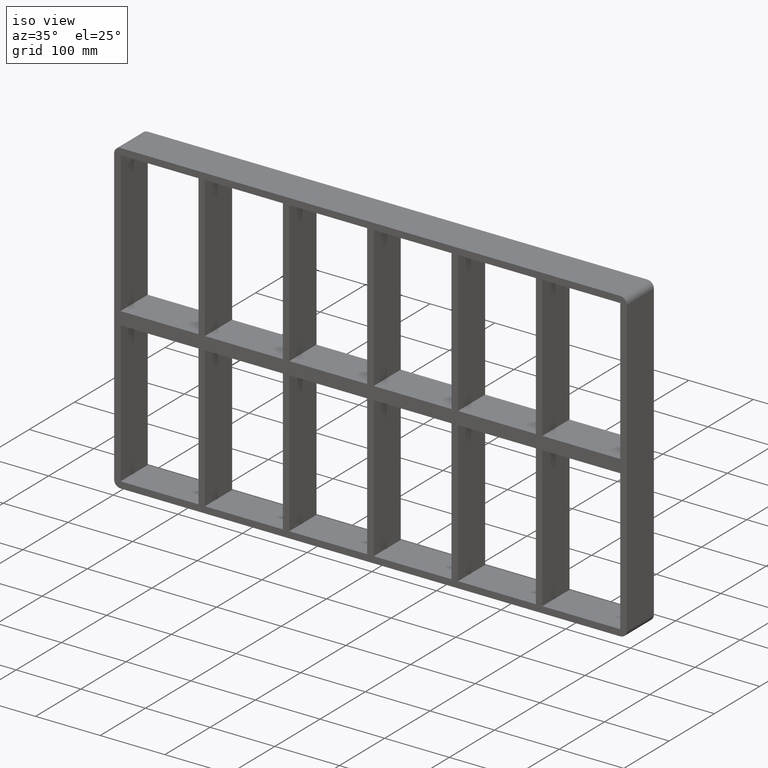
[diagram: clean part render]
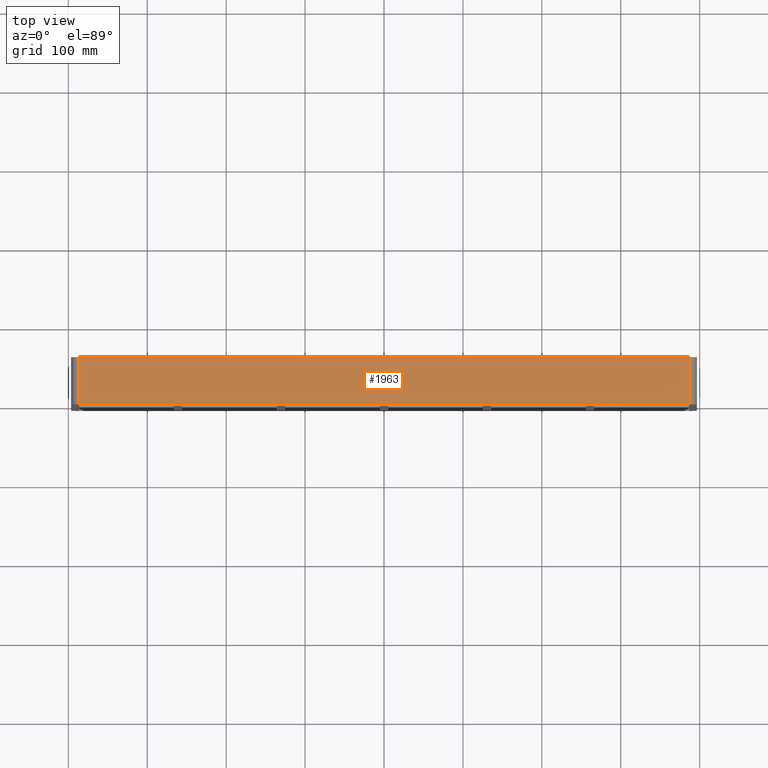
[diagram: tour spotlight — one face highlighted and labeled with its STEP entity id]
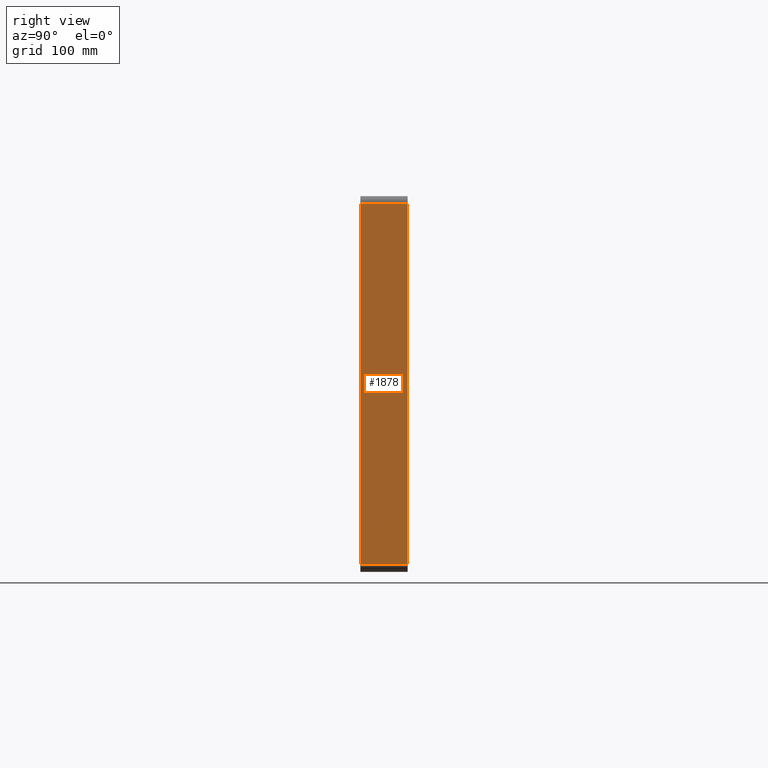
[diagram: tour spotlight — one face highlighted and labeled with its STEP entity id]
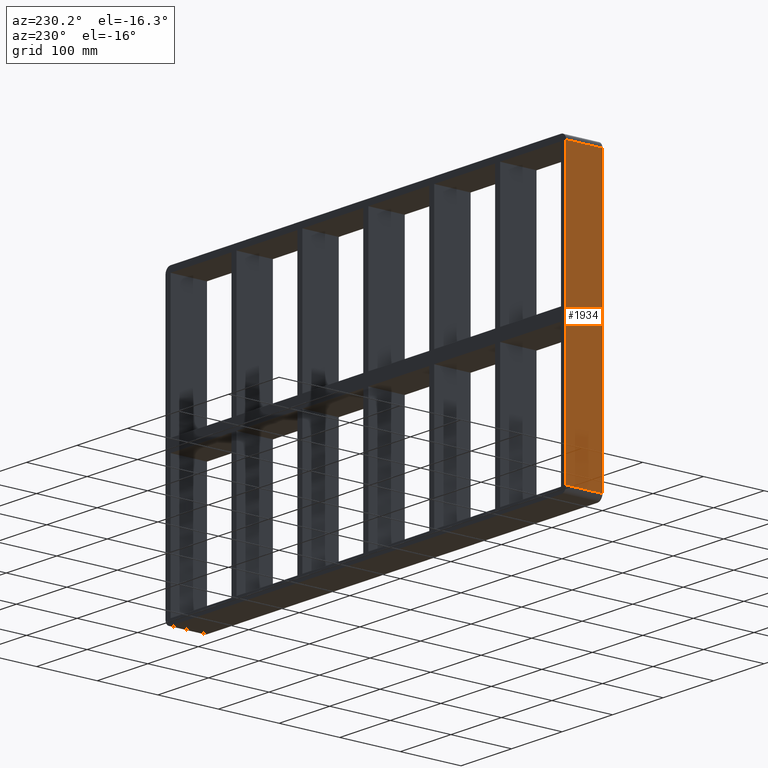
[diagram: tour spotlight — one face highlighted and labeled with its STEP entity id]
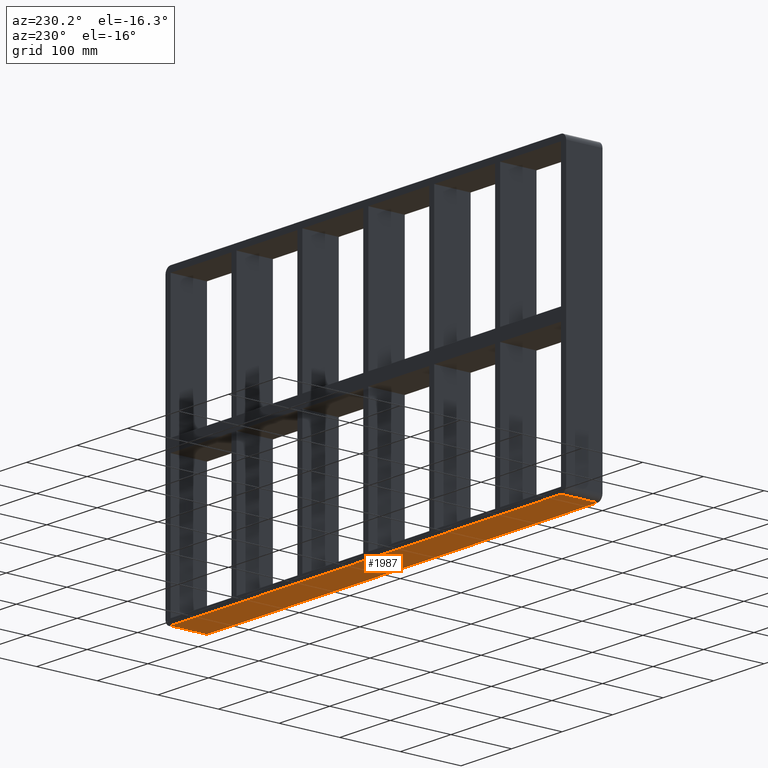
[diagram: tour spotlight — one face highlighted and labeled with its STEP entity id]
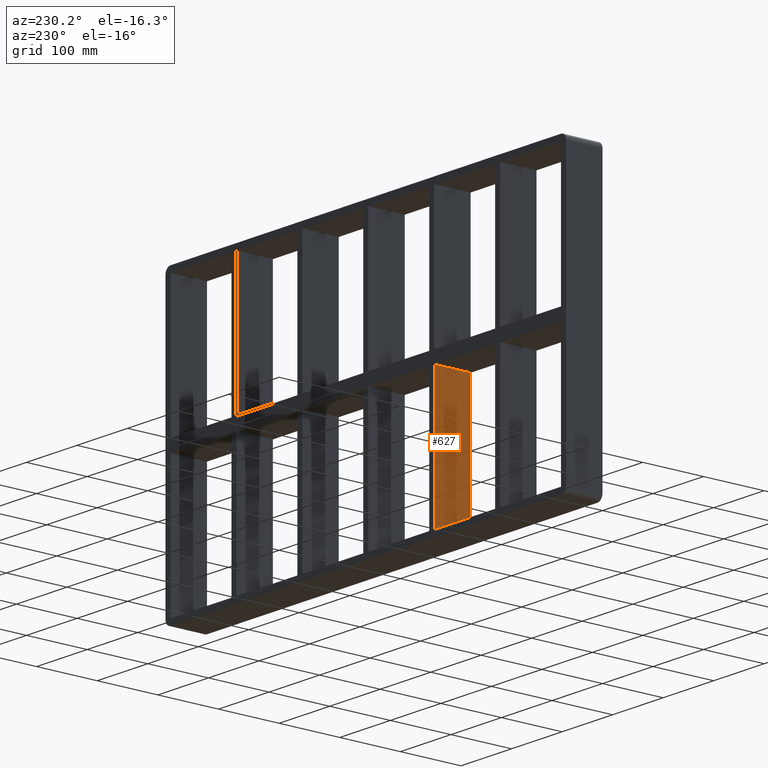
[diagram: tour spotlight — one face highlighted and labeled with its STEP entity id]
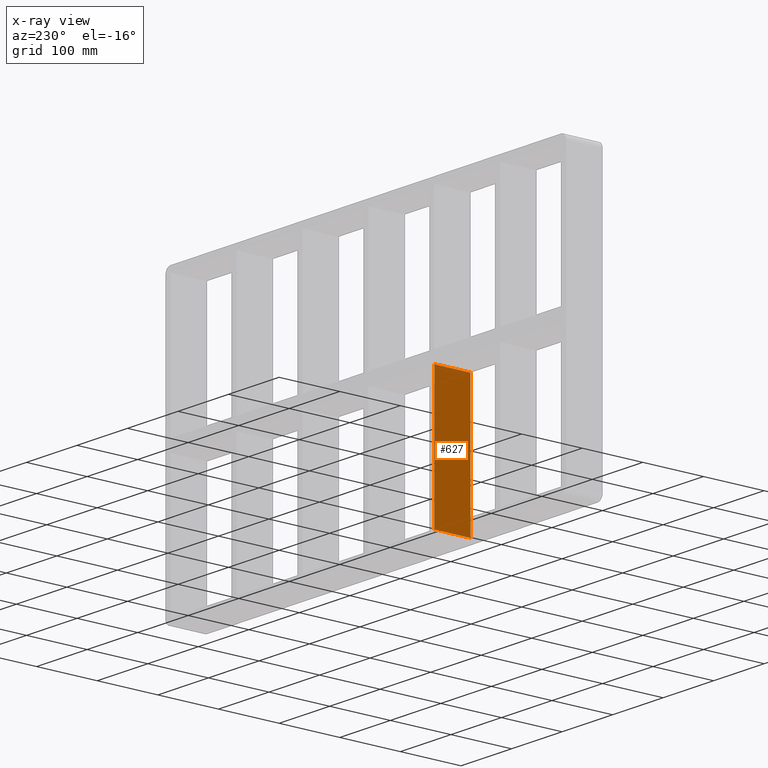
[diagram: x-ray of the same camera — body ghosted, this tour face saturated]
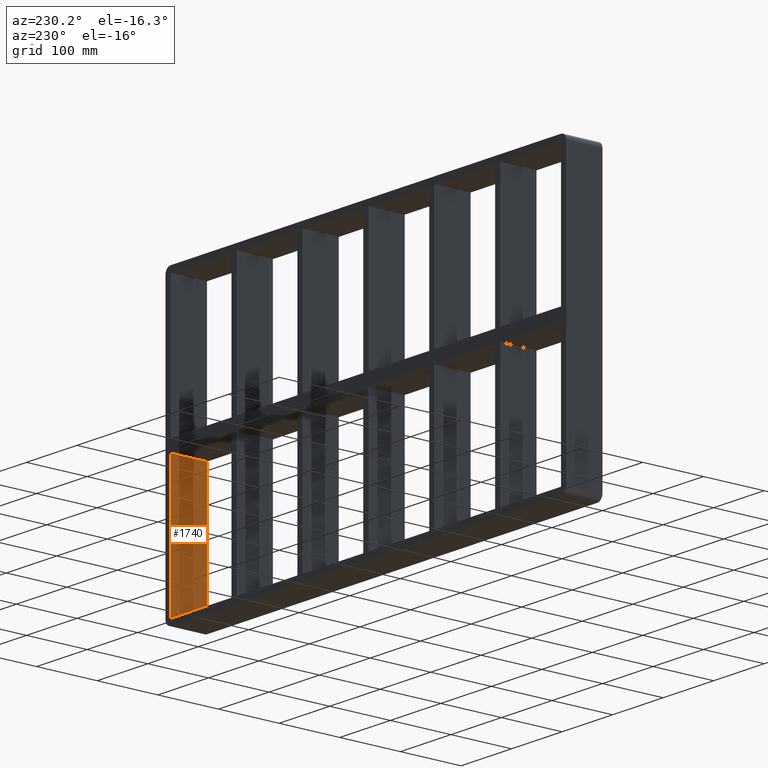
[diagram: tour spotlight — one face highlighted and labeled with its STEP entity id]
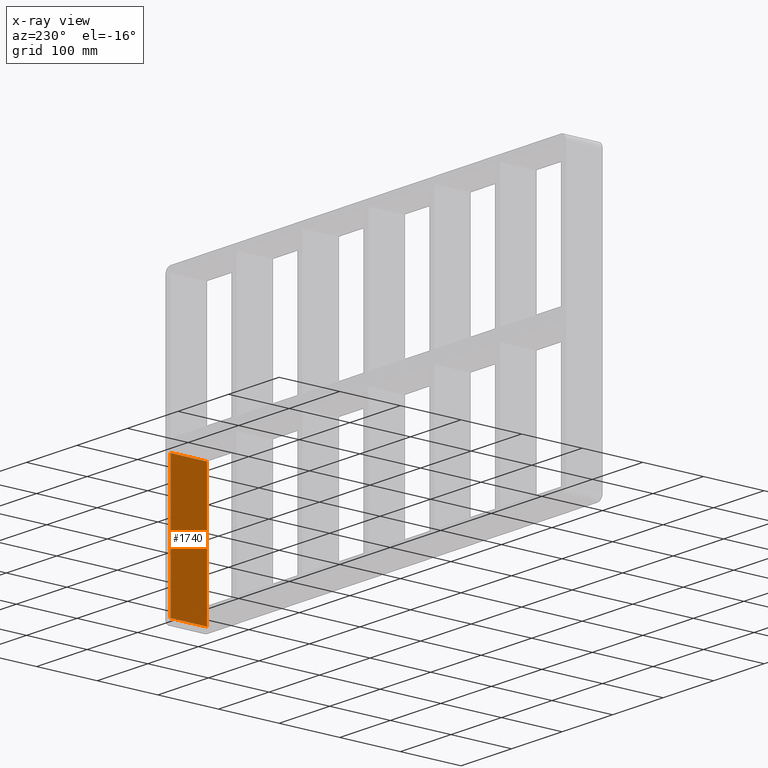
[diagram: x-ray of the same camera — body ghosted, this tour face saturated]
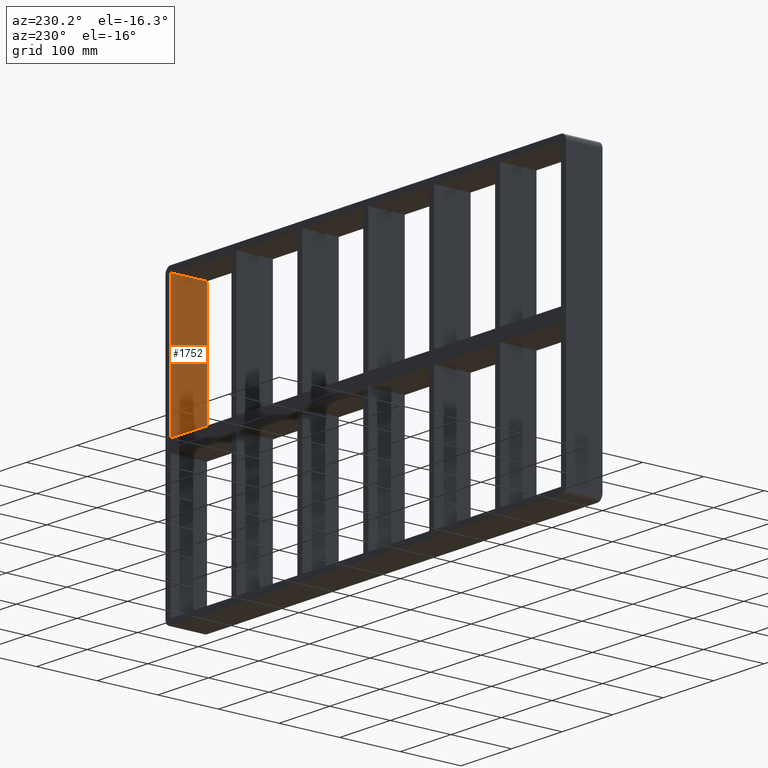
[diagram: tour spotlight — one face highlighted and labeled with its STEP entity id]
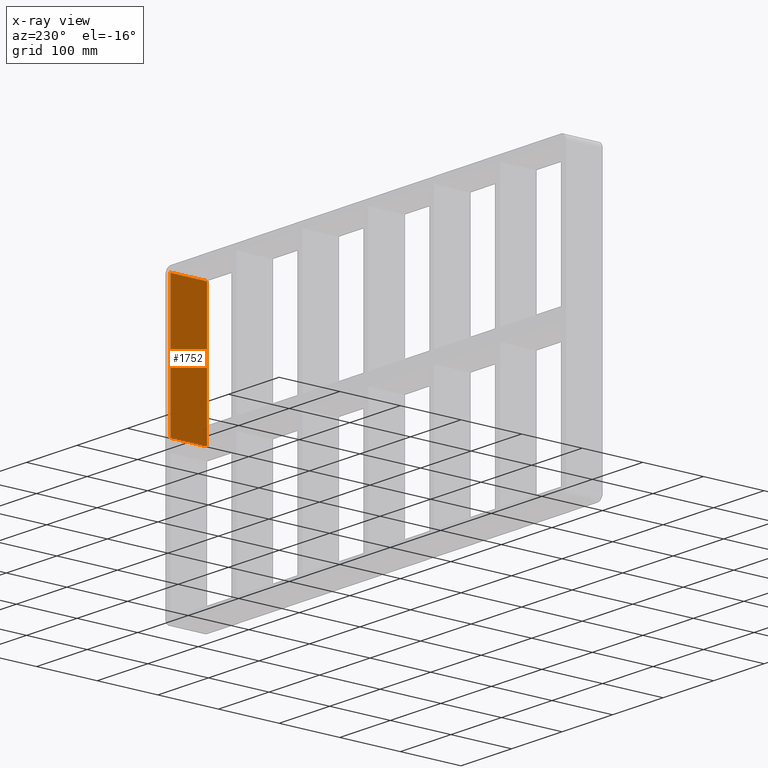
[diagram: x-ray of the same camera — body ghosted, this tour face saturated]
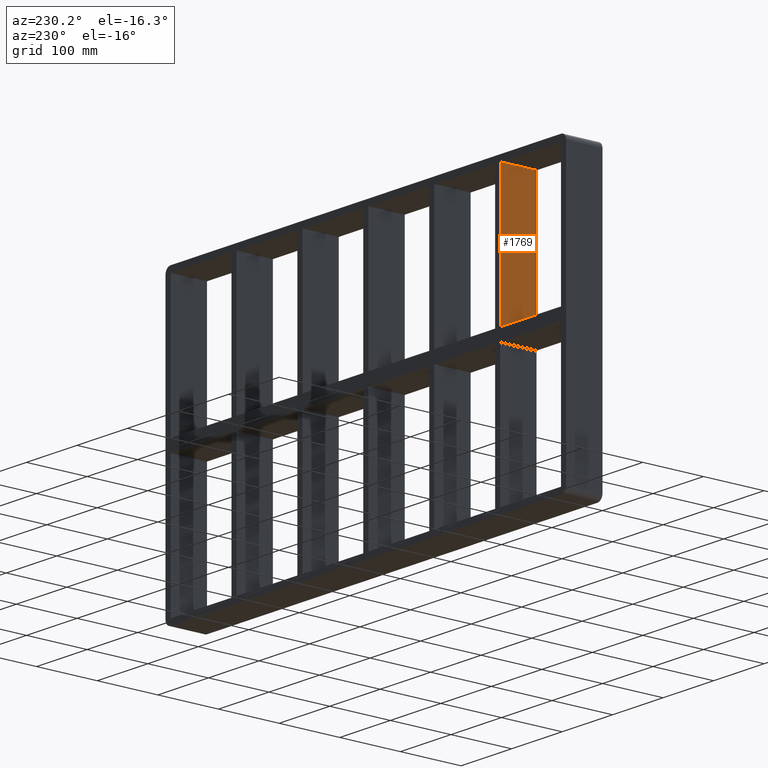
[diagram: tour spotlight — one face highlighted and labeled with its STEP entity id]
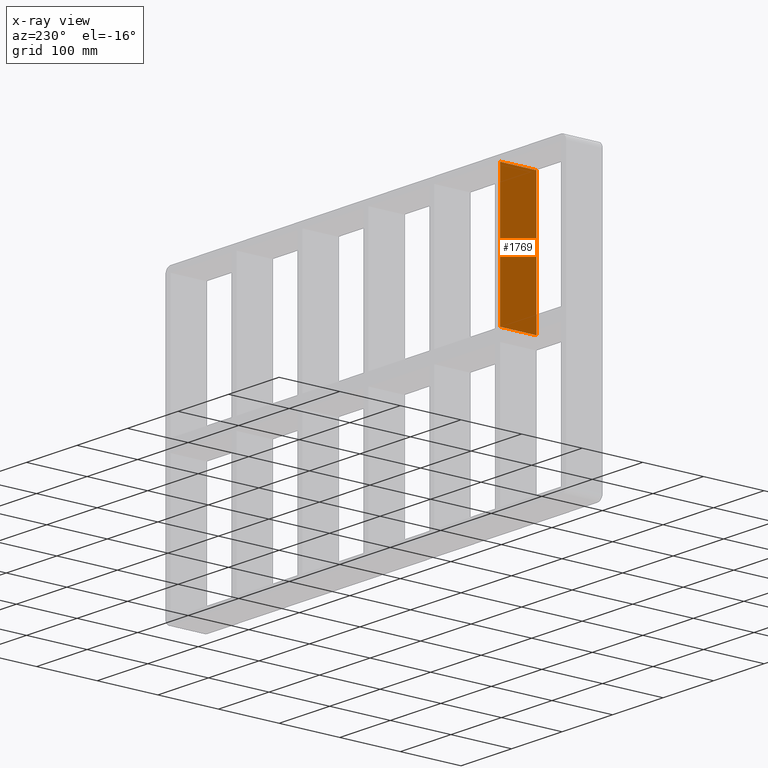
[diagram: x-ray of the same camera — body ghosted, this tour face saturated]
A machine part: a face-by-face anatomy tour. The part has 58 B-rep faces; the first image is the clean iso view, then the 8 largest visible faces are spotlighted one at a time (largest first), each with its STEP entity span.

Face 1 — top view, entity #1963. In plain terms, the highlighted planar face has unit normal (0, 0, 1).
Definition (entity closure, byte-faithful):
#860=CARTESIAN_POINT('',(386.50000000000006,-3.0,238.0));
#861=VERTEX_POINT('',#860);
#869=CARTESIAN_POINT('',(-386.50000000000006,-3.0,238.0));
#870=VERTEX_POINT('',#869);
#871=CARTESIAN_POINT('',(386.50000000000006,-3.0,238.0));
#872=DIRECTION('',(-1.0,0.0,0.0));
#873=VECTOR('',#872,773.00000000000011);
#874=LINE('',#871,#873);
#875=EDGE_CURVE('',#861,#870,#874,.T.);
#1270=CARTESIAN_POINT('',(-386.50000000000006,57.0,238.0));
#1271=VERTEX_POINT('',#1270);
#1279=CARTESIAN_POINT('',(386.50000000000006,57.0,238.0));
#1280=VERTEX_POINT('',#1279);
#1281=CARTESIAN_POINT('',(-386.50000000000006,57.0,238.0));
#1282=DIRECTION('',(1.0,0.0,0.0));
#1283=VECTOR('',#1282,773.00000000000011);
#1284=LINE('',#1281,#1283);
#1285=EDGE_CURVE('',#1271,#1280,#1284,.T.);
#1887=CARTESIAN_POINT('',(386.50000000000006,57.0,238.0));
#1888=DIRECTION('',(0.0,-1.0,0.0));
#1889=VECTOR('',#1888,60.0);
#1890=LINE('',#1887,#1889);
#1891=EDGE_CURVE('',#1280,#861,#1890,.T.);
#1943=CARTESIAN_POINT('',(-386.50000000000006,-3.0,238.0));
#1944=DIRECTION('',(0.0,1.0,0.0));
#1945=VECTOR('',#1944,60.0);
#1946=LINE('',#1943,#1945);
#1947=EDGE_CURVE('',#870,#1271,#1946,.T.);
#1952=CARTESIAN_POINT('',(-396.50000000000006,0.0,238.0));
#1953=DIRECTION('',(0.0,0.0,1.0));
#1954=DIRECTION('',(1.0,0.0,0.0));
#1955=AXIS2_PLACEMENT_3D('',#1952,#1953,#1954);
#1956=PLANE('',#1955);
#1957=ORIENTED_EDGE('',*,*,#1891,.F.);
#1958=ORIENTED_EDGE('',*,*,#1285,.F.);
#1959=ORIENTED_EDGE('',*,*,#1947,.F.);
#1960=ORIENTED_EDGE('',*,*,#875,.F.);
#1961=EDGE_LOOP('',(#1957,#1958,#1959,#1960));
#1962=FACE_OUTER_BOUND('',#1961,.T.);
#1963=ADVANCED_FACE('',(#1962),#1956,.T.);

Face 2 — right view, entity #1878. In plain terms, the highlighted planar face has unit normal (1, 0, 0).
Definition (entity closure, byte-faithful):
#841=CARTESIAN_POINT('',(396.50000000000006,-3.0,-228.0));
#842=VERTEX_POINT('',#841);
#852=CARTESIAN_POINT('',(396.50000000000006,-3.0,228.0));
#853=VERTEX_POINT('',#852);
#854=CARTESIAN_POINT('',(396.50000000000006,-3.0,-228.0));
#855=DIRECTION('',(0.0,0.0,1.0));
#856=VECTOR('',#855,456.0);
#857=LINE('',#854,#856);
#858=EDGE_CURVE('',#842,#853,#857,.T.);
#1236=CARTESIAN_POINT('',(396.50000000000006,57.0,-228.0));
#1237=VERTEX_POINT('',#1236);
#1287=CARTESIAN_POINT('',(396.50000000000006,57.0,228.0));
#1288=VERTEX_POINT('',#1287);
#1296=CARTESIAN_POINT('',(396.50000000000006,57.0,228.0));
#1297=DIRECTION('',(0.0,0.0,-1.0));
#1298=VECTOR('',#1297,456.0);
#1299=LINE('',#1296,#1298);
#1300=EDGE_CURVE('',#1288,#1237,#1299,.T.);
#1846=CARTESIAN_POINT('',(396.50000000000006,57.0,-228.0));
#1847=DIRECTION('',(0.0,-1.0,0.0));
#1848=VECTOR('',#1847,60.0);
#1849=LINE('',#1846,#1848);
#1850=EDGE_CURVE('',#1237,#842,#1849,.T.);
#1862=CARTESIAN_POINT('',(396.50000000000006,0.0,238.0));
#1863=DIRECTION('',(1.0,0.0,0.0));
#1864=DIRECTION('',(0.0,0.0,-1.0));
#1865=AXIS2_PLACEMENT_3D('',#1862,#1863,#1864);
#1866=PLANE('',#1865);
#1867=ORIENTED_EDGE('',*,*,#1850,.F.);
#1868=ORIENTED_EDGE('',*,*,#1300,.F.);
#1869=CARTESIAN_POINT('',(396.50000000000006,-3.0,228.0));
#1870=DIRECTION('',(0.0,1.0,0.0));
#1871=VECTOR('',#1870,60.0);
#1872=LINE('',#1869,#1871);
#1873=EDGE_CURVE('',#853,#1288,#1872,.T.);
#1874=ORIENTED_EDGE('',*,*,#1873,.F.);
#1875=ORIENTED_EDGE('',*,*,#858,.F.);
#1876=EDGE_LOOP('',(#1867,#1868,#1874,#1875));
#1877=FACE_OUTER_BOUND('',#1876,.T.);
#1878=ADVANCED_FACE('',(#1877),#1866,.T.);

Face 3 — auxiliary view, entity #1934. In plain terms, the highlighted planar face has unit normal (-1, 0, 0).
Definition (entity closure, byte-faithful):
#877=CARTESIAN_POINT('',(-396.50000000000006,-3.0,228.0));
#878=VERTEX_POINT('',#877);
#886=CARTESIAN_POINT('',(-396.50000000000006,-3.0,-228.0));
#887=VERTEX_POINT('',#886);
#888=CARTESIAN_POINT('',(-396.50000000000006,-3.0,228.0));
#889=DIRECTION('',(0.0,0.0,-1.0));
#890=VECTOR('',#889,456.0);
#891=LINE('',#888,#890);
#892=EDGE_CURVE('',#878,#887,#891,.T.);
#1253=CARTESIAN_POINT('',(-396.50000000000006,57.0,-228.0));
#1254=VERTEX_POINT('',#1253);
#1262=CARTESIAN_POINT('',(-396.50000000000006,57.0,228.0));
#1263=VERTEX_POINT('',#1262);
#1264=CARTESIAN_POINT('',(-396.50000000000006,57.0,-228.0));
#1265=DIRECTION('',(0.0,0.0,1.0));
#1266=VECTOR('',#1265,456.0);
#1267=LINE('',#1264,#1266);
#1268=EDGE_CURVE('',#1254,#1263,#1267,.T.);
#1909=CARTESIAN_POINT('',(-396.50000000000006,-3.0,-228.0));
#1910=DIRECTION('',(0.0,1.0,0.0));
#1911=VECTOR('',#1910,60.0);
#1912=LINE('',#1909,#1911);
#1913=EDGE_CURVE('',#887,#1254,#1912,.T.);
#1918=CARTESIAN_POINT('',(-396.50000000000006,0.0,-238.0));
#1919=DIRECTION('',(-1.0,0.0,0.0));
#1920=DIRECTION('',(0.0,0.0,1.0));
#1921=AXIS2_PLACEMENT_3D('',#1918,#1919,#1920);
#1922=PLANE('',#1921);
#1923=ORIENTED_EDGE('',*,*,#1913,.F.);
#1924=ORIENTED_EDGE('',*,*,#892,.F.);
#1925=CARTESIAN_POINT('',(-396.50000000000006,57.0,228.0));
#1926=DIRECTION('',(0.0,-1.0,0.0));
#1927=VECTOR('',#1926,60.0);
#1928=LINE('',#1925,#1927);
#1929=EDGE_CURVE('',#1263,#878,#1928,.T.);
#1930=ORIENTED_EDGE('',*,*,#1929,.F.);
#1931=ORIENTED_EDGE('',*,*,#1268,.F.);
#1932=EDGE_LOOP('',(#1923,#1924,#1930,#1931));
#1933=FACE_OUTER_BOUND('',#1932,.T.);
#1934=ADVANCED_FACE('',(#1933),#1922,.T.);

Face 4 — auxiliary view, entity #1987. In plain terms, the highlighted planar face has unit normal (0, 0, -1).
Definition (entity closure, byte-faithful):
#843=CARTESIAN_POINT('',(386.50000000000006,-3.0,-238.0));
#844=VERTEX_POINT('',#843);
#894=CARTESIAN_POINT('',(-386.50000000000006,-3.0,-238.0));
#895=VERTEX_POINT('',#894);
#903=CARTESIAN_POINT('',(-386.50000000000006,-3.0,-238.0));
#904=DIRECTION('',(1.0,0.0,0.0));
#905=VECTOR('',#904,773.00000000000011);
#906=LINE('',#903,#905);
#907=EDGE_CURVE('',#895,#844,#906,.T.);
#1234=CARTESIAN_POINT('',(386.50000000000006,57.0,-238.0));
#1235=VERTEX_POINT('',#1234);
#1245=CARTESIAN_POINT('',(-386.50000000000006,57.0,-238.0));
#1246=VERTEX_POINT('',#1245);
#1247=CARTESIAN_POINT('',(386.50000000000006,57.0,-238.0));
#1248=DIRECTION('',(-1.0,0.0,0.0));
#1249=VECTOR('',#1248,773.00000000000011);
#1250=LINE('',#1247,#1249);
#1251=EDGE_CURVE('',#1235,#1246,#1250,.T.);
#1853=CARTESIAN_POINT('',(386.50000000000006,-3.0,-238.0));
#1854=DIRECTION('',(0.0,1.0,0.0));
#1855=VECTOR('',#1854,60.0);
#1856=LINE('',#1853,#1855);
#1857=EDGE_CURVE('',#844,#1235,#1856,.T.);
#1902=CARTESIAN_POINT('',(-386.50000000000006,57.0,-238.0));
#1903=DIRECTION('',(0.0,-1.0,0.0));
#1904=VECTOR('',#1903,60.0);
#1905=LINE('',#1902,#1904);
#1906=EDGE_CURVE('',#1246,#895,#1905,.T.);
#1976=CARTESIAN_POINT('',(396.50000000000006,0.0,-238.0));
#1977=DIRECTION('',(0.0,0.0,-1.0));
#1978=DIRECTION('',(-1.0,0.0,0.0));
#1979=AXIS2_PLACEMENT_3D('',#1976,#1977,#1978);
#1980=PLANE('',#1979);
#1981=ORIENTED_EDGE('',*,*,#1857,.F.);
#1982=ORIENTED_EDGE('',*,*,#907,.F.);
#1983=ORIENTED_EDGE('',*,*,#1906,.F.);
#1984=ORIENTED_EDGE('',*,*,#1251,.F.);
#1985=EDGE_LOOP('',(#1981,#1982,#1983,#1984));
#1986=FACE_OUTER_BOUND('',#1985,.T.);
#1987=ADVANCED_FACE('',(#1986),#1980,.T.);

Face 5 — auxiliary view, entity #627. An x-ray twin of the same camera follows (body ghosted, this face saturated) — the face is partly hidden behind the body. In plain terms, the highlighted planar face has unit normal (-1, 0, 0).
Definition (entity closure, byte-faithful):
#588=CARTESIAN_POINT('',(-135.50000000000128,-3.0,-227.99999999999997));
#589=DIRECTION('',(-1.0,0.0,0.0));
#590=DIRECTION('',(0.0,0.0,1.0));
#591=AXIS2_PLACEMENT_3D('',#588,#589,#590);
#592=PLANE('',#591);
#593=CARTESIAN_POINT('',(-135.50000000000131,57.0,-10.000000000009379));
#594=VERTEX_POINT('',#593);
#595=CARTESIAN_POINT('',(-135.50000000000131,-3.0,-10.000000000009379));
#596=VERTEX_POINT('',#595);
#597=CARTESIAN_POINT('',(-135.50000000000128,57.0,-10.000000000009361));
#598=DIRECTION('',(0.0,-1.0,0.0));
#599=VECTOR('',#598,60.0);
#600=LINE('',#597,#599);
#601=EDGE_CURVE('',#594,#596,#600,.T.);
#602=ORIENTED_EDGE('',*,*,#601,.F.);
#603=CARTESIAN_POINT('',(-135.50000000000128,57.0,-227.99999999999997));
#604=VERTEX_POINT('',#603);
#605=CARTESIAN_POINT('',(-135.50000000000128,57.0,-227.99999999999997));
#606=DIRECTION('',(0.0,0.0,1.0));
#607=VECTOR('',#606,217.99999999999059);
#608=LINE('',#605,#607);
#609=EDGE_CURVE('',#604,#594,#608,.T.);
#610=ORIENTED_EDGE('',*,*,#609,.F.);
#611=CARTESIAN_POINT('',(-135.50000000000128,-3.0,-227.99999999999997));
#612=VERTEX_POINT('',#611);
#613=CARTESIAN_POINT('',(-135.50000000000131,-3.0,-227.99999999999997));
#614=DIRECTION('',(0.0,1.0,0.0));
#615=VECTOR('',#614,60.000000000000007);
#616=LINE('',#613,#615);
#617=EDGE_CURVE('',#612,#604,#616,.T.);
#618=ORIENTED_EDGE('',*,*,#617,.F.);
#619=CARTESIAN_POINT('',(-135.50000000000128,-3.0,-227.99999999999997));
#620=DIRECTION('',(0.0,0.0,1.0));
#621=VECTOR('',#620,217.99999999999059);
#622=LINE('',#619,#621);
#623=EDGE_CURVE('',#612,#596,#622,.T.);
#624=ORIENTED_EDGE('',*,*,#623,.T.);
#625=EDGE_LOOP('',(#602,#610,#618,#624));
#626=FACE_OUTER_BOUND('',#625,.T.);
#627=ADVANCED_FACE('',(#626),#592,.T.);

Face 6 — auxiliary view, entity #1740. An x-ray twin of the same camera follows (body ghosted, this face saturated) — the face is partly hidden behind the body. In plain terms, the highlighted planar face has unit normal (1, 0, 0).
Definition (entity closure, byte-faithful):
#811=CARTESIAN_POINT('',(386.50000000000011,-3.0,-227.99999999999997));
#812=VERTEX_POINT('',#811);
#819=CARTESIAN_POINT('',(386.50000000000011,57.0,-227.99999999999997));
#820=VERTEX_POINT('',#819);
#821=CARTESIAN_POINT('',(386.50000000000011,57.0,-227.99999999999997));
#822=DIRECTION('',(0.0,-1.0,0.0));
#823=VECTOR('',#822,60.0);
#824=LINE('',#821,#823);
#825=EDGE_CURVE('',#820,#812,#824,.T.);
#1061=CARTESIAN_POINT('',(386.49999999999636,-3.0,-10.000000000009344));
#1062=VERTEX_POINT('',#1061);
#1069=CARTESIAN_POINT('',(386.50000000000011,-3.0,-10.000000000009351));
#1070=DIRECTION('',(0.0,0.0,-1.0));
#1071=VECTOR('',#1070,217.99999999999059);
#1072=LINE('',#1069,#1071);
#1073=EDGE_CURVE('',#1062,#812,#1072,.T.);
#1153=CARTESIAN_POINT('',(386.49999999999631,57.0,-10.000000000009344));
#1154=VERTEX_POINT('',#1153);
#1161=CARTESIAN_POINT('',(386.50000000000011,-3.0,-10.000000000009344));
#1162=DIRECTION('',(0.0,1.0,0.0));
#1163=VECTOR('',#1162,60.000000000000007);
#1164=LINE('',#1161,#1163);
#1165=EDGE_CURVE('',#1062,#1154,#1164,.T.);
#1305=CARTESIAN_POINT('',(386.50000000000011,57.0,-227.99999999999994));
#1306=DIRECTION('',(0.0,0.0,1.0));
#1307=VECTOR('',#1306,217.99999999999059);
#1308=LINE('',#1305,#1307);
#1309=EDGE_CURVE('',#820,#1154,#1308,.T.);
#1729=CARTESIAN_POINT('',(386.50000000000011,0.0,228.0));
#1730=DIRECTION('',(1.0,0.0,0.0));
#1731=DIRECTION('',(0.0,0.0,-1.0));
#1732=AXIS2_PLACEMENT_3D('',#1729,#1730,#1731);
#1733=PLANE('',#1732);
#1734=ORIENTED_EDGE('',*,*,#1165,.T.);
#1735=ORIENTED_EDGE('',*,*,#1309,.F.);
#1736=ORIENTED_EDGE('',*,*,#825,.T.);
#1737=ORIENTED_EDGE('',*,*,#1073,.F.);
#1738=EDGE_LOOP('',(#1734,#1735,#1736,#1737));
#1739=FACE_OUTER_BOUND('',#1738,.T.);
#1740=ADVANCED_FACE('',(#1739),#1733,.F.);

Face 7 — auxiliary view, entity #1752. An x-ray twin of the same camera follows (body ghosted, this face saturated) — the face is partly hidden behind the body. In plain terms, the highlighted planar face has unit normal (1, 0, 0).
Definition (entity closure, byte-faithful):
#1036=CARTESIAN_POINT('',(386.50000000000011,-3.0,227.99999999999997));
#1037=VERTEX_POINT('',#1036);
#1044=CARTESIAN_POINT('',(386.50000000000006,-3.0,10.0));
#1045=VERTEX_POINT('',#1044);
#1046=CARTESIAN_POINT('',(386.50000000000011,-3.0,227.99999999999997));
#1047=DIRECTION('',(0.0,0.0,-1.0));
#1048=VECTOR('',#1047,217.99999999999997);
#1049=LINE('',#1046,#1048);
#1050=EDGE_CURVE('',#1037,#1045,#1049,.T.);
#1315=CARTESIAN_POINT('',(386.5,57.0,10.0));
#1316=VERTEX_POINT('',#1315);
#1323=CARTESIAN_POINT('',(386.50000000000011,57.0,227.99999999999997));
#1324=VERTEX_POINT('',#1323);
#1325=CARTESIAN_POINT('',(386.50000000000011,57.0,10.0));
#1326=DIRECTION('',(0.0,0.0,1.0));
#1327=VECTOR('',#1326,217.99999999999997);
#1328=LINE('',#1325,#1327);
#1329=EDGE_CURVE('',#1316,#1324,#1328,.T.);
#1564=CARTESIAN_POINT('',(386.50000000000011,57.000000000000007,10.0));
#1565=DIRECTION('',(0.0,-1.0,0.0));
#1566=VECTOR('',#1565,60.000000000000007);
#1567=LINE('',#1564,#1566);
#1568=EDGE_CURVE('',#1316,#1045,#1567,.T.);
#1622=CARTESIAN_POINT('',(386.50000000000011,-3.0,228.0));
#1623=DIRECTION('',(0.0,1.0,0.0));
#1624=VECTOR('',#1623,60.0);
#1625=LINE('',#1622,#1624);
#1626=EDGE_CURVE('',#1037,#1324,#1625,.T.);
#1741=CARTESIAN_POINT('',(386.50000000000011,0.0,228.0));
#1742=DIRECTION('',(1.0,0.0,0.0));
#1743=DIRECTION('',(0.0,0.0,-1.0));
#1744=AXIS2_PLACEMENT_3D('',#1741,#1742,#1743);
#1745=PLANE('',#1744);
#1746=ORIENTED_EDGE('',*,*,#1568,.T.);
#1747=ORIENTED_EDGE('',*,*,#1050,.F.);
#1748=ORIENTED_EDGE('',*,*,#1626,.T.);
#1749=ORIENTED_EDGE('',*,*,#1329,.F.);
#1750=EDGE_LOOP('',(#1746,#1747,#1748,#1749));
#1751=FACE_OUTER_BOUND('',#1750,.T.);
#1752=ADVANCED_FACE('',(#1751),#1745,.F.);

Face 8 — auxiliary view, entity #1769. An x-ray twin of the same camera follows (body ghosted, this face saturated) — the face is partly hidden behind the body. In plain terms, the highlighted planar face has unit normal (-1, 0, 0).
Definition (entity closure, byte-faithful):
#1088=CARTESIAN_POINT('',(-266.00000000000136,-3.0,227.99999999999997));
#1089=VERTEX_POINT('',#1088);
#1096=CARTESIAN_POINT('',(-266.00000000000131,-3.0,10.0));
#1097=VERTEX_POINT('',#1096);
#1098=CARTESIAN_POINT('',(-266.00000000000136,-3.0,10.0));
#1099=DIRECTION('',(0.0,0.0,1.0));
#1100=VECTOR('',#1099,217.99999999999997);
#1101=LINE('',#1098,#1100);
#1102=EDGE_CURVE('',#1097,#1089,#1101,.T.);
#1424=CARTESIAN_POINT('',(-266.00000000000131,57.0,10.0));
#1425=VERTEX_POINT('',#1424);
#1432=CARTESIAN_POINT('',(-266.00000000000136,57.0,227.99999999999997));
#1433=VERTEX_POINT('',#1432);
#1434=CARTESIAN_POINT('',(-266.00000000000136,57.0,10.0));
#1435=DIRECTION('',(0.0,0.0,1.0));
#1436=VECTOR('',#1435,217.99999999999997);
#1437=LINE('',#1434,#1436);
#1438=EDGE_CURVE('',#1425,#1433,#1437,.T.);
#1695=CARTESIAN_POINT('',(-266.00000000000131,57.0,10.0));
#1696=DIRECTION('',(0.0,-1.0,0.0));
#1697=VECTOR('',#1696,60.0);
#1698=LINE('',#1695,#1697);
#1699=EDGE_CURVE('',#1425,#1097,#1698,.T.);
#1753=CARTESIAN_POINT('',(-266.00000000000131,-3.0,-227.99999999999997));
#1754=DIRECTION('',(-1.0,0.0,0.0));
#1755=DIRECTION('',(0.0,0.0,1.0));
#1756=AXIS2_PLACEMENT_3D('',#1753,#1754,#1755);
#1757=PLANE('',#1756);
#1758=ORIENTED_EDGE('',*,*,#1699,.T.);
#1759=ORIENTED_EDGE('',*,*,#1102,.T.);
#1760=CARTESIAN_POINT('',(-266.00000000000142,57.000000000000007,228.0));
#1761=DIRECTION('',(0.0,-1.0,0.0));
#1762=VECTOR('',#1761,60.000000000000007);
#1763=LINE('',#1760,#1762);
#1764=EDGE_CURVE('',#1433,#1089,#1763,.T.);
#1765=ORIENTED_EDGE('',*,*,#1764,.F.);
#1766=ORIENTED_EDGE('',*,*,#1438,.F.);
#1767=EDGE_LOOP('',(#1758,#1759,#1765,#1766));
#1768=FACE_OUTER_BOUND('',#1767,.T.);
#1769=ADVANCED_FACE('',(#1768),#1757,.T.);